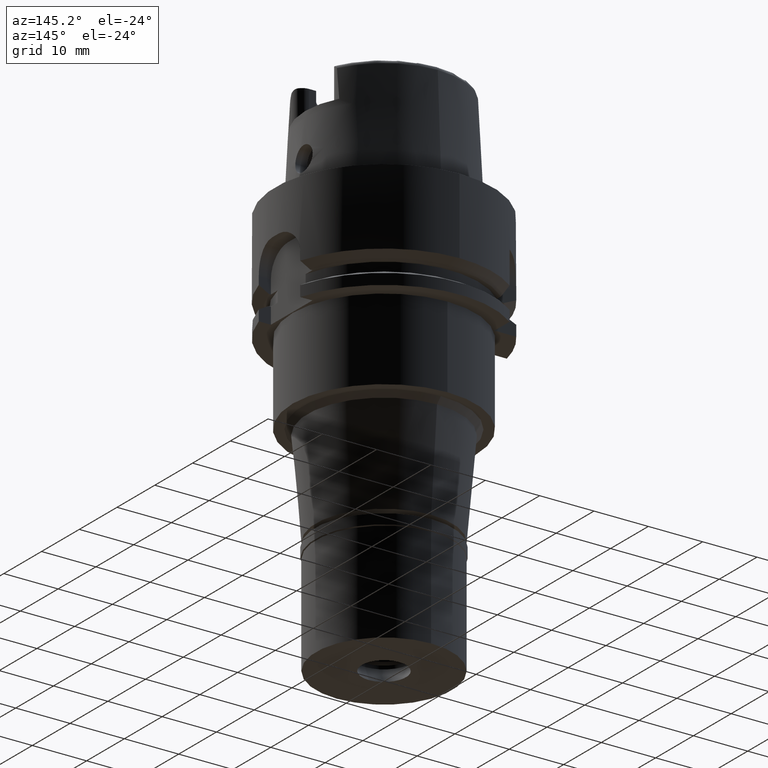
[diagram: clean part render]
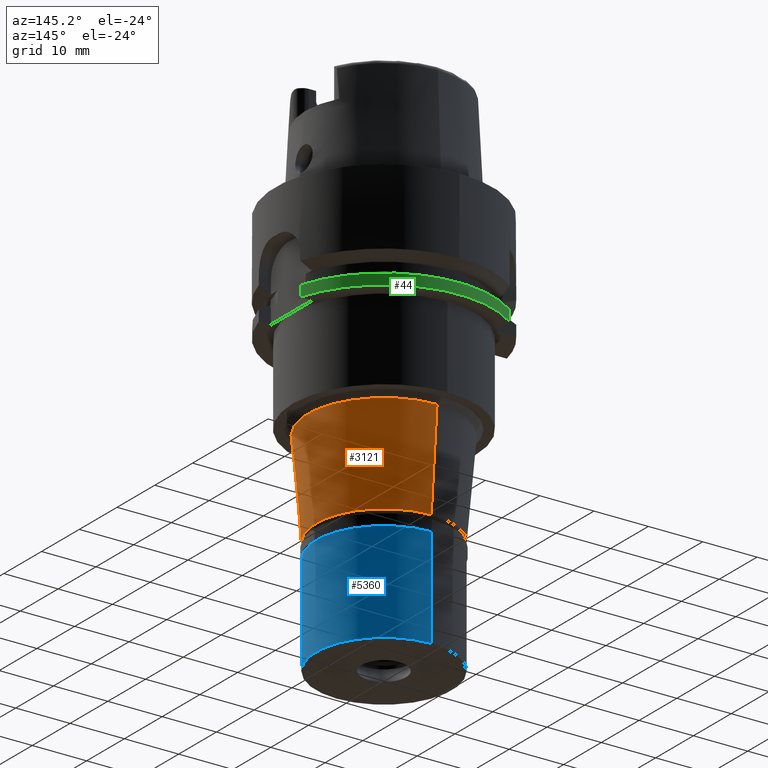
[diagram: same view with three faces highlighted in distinct colors, each labeled with its STEP entity id]
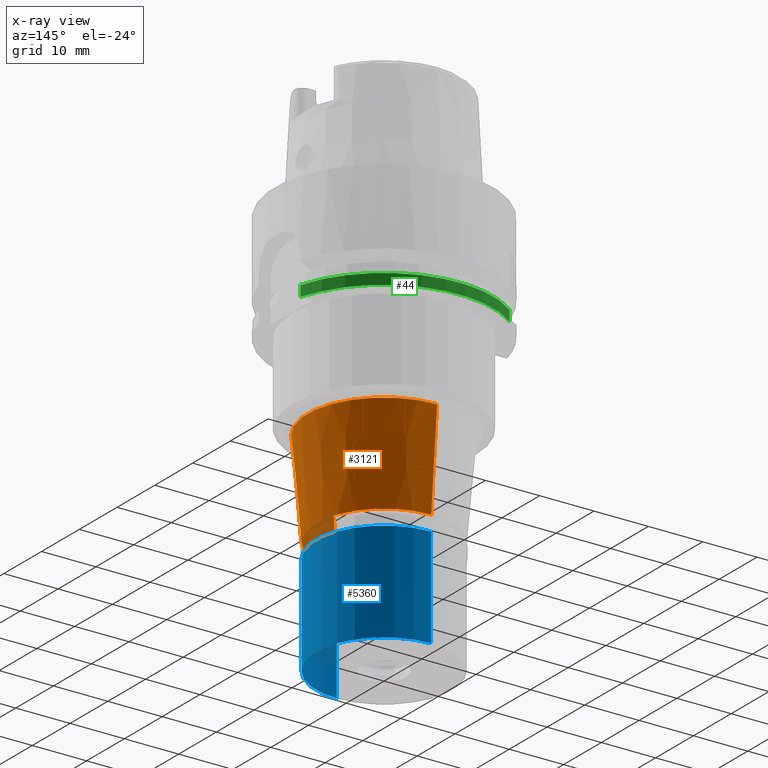
[diagram: x-ray of the same camera — body ghosted, the three highlighted faces saturated]
A machine part, auxiliary view with three faces highlighted in distinct colors.
The next image is the same camera in x-ray (body ghosted, the three faces saturated) — at least one of them is partly hidden behind the body in this view.
Their STEP definitions:

[orange] entity #3121 — the highlighted conical surface has half-angle 5 deg.
#249 = CARTESIAN_POINT ( 'NONE',  ( 0.0000000000000000000, 14.04854934441000047, -36.00000000000000000 ) ) ;
#265 = AXIS2_PLACEMENT_3D ( 'NONE', #5361, #791, #4588 ) ;
#420 = VERTEX_POINT ( 'NONE', #2035 ) ;
#588 = EDGE_CURVE ( 'NONE', #5343, #3355, #4698, .T. ) ;
#791 = DIRECTION ( 'NONE',  ( 0.0000000000000000000, 0.0000000000000000000, 1.000000000000000000 ) ) ;
#807 = DIRECTION ( 'NONE',  ( 0.0000000000000000000, 0.0000000000000000000, 1.000000000000000000 ) ) ;
#819 = EDGE_CURVE ( 'NONE', #420, #3505, #1577, .T. ) ;
#839 = DIRECTION ( 'NONE',  ( 0.0000000000000000000, 0.08715574274773338348, -0.9961946980917388839 ) ) ;
#1468 = EDGE_CURVE ( 'NONE', #3355, #3505, #4322, .T. ) ;
#1502 = ORIENTED_EDGE ( 'NONE', *, *, #819, .F. ) ;
#1539 = VECTOR ( 'NONE', #839, 1000.000000000000114 ) ;
#1577 = LINE ( 'NONE', #249, #2337 ) ;
#1647 = FACE_OUTER_BOUND ( 'NONE', #3688, .T. ) ;
#1724 = DIRECTION ( 'NONE',  ( 0.0000000000000000000, -1.000000000000000000, 0.0000000000000000000 ) ) ;
#1745 = ORIENTED_EDGE ( 'NONE', *, *, #1468, .T. ) ;
#1824 = ORIENTED_EDGE ( 'NONE', *, *, #2116, .F. ) ;
#1959 = CONICAL_SURFACE ( 'NONE', #265, 13.27427467220000068, 0.08726646259969973729 ) ;
#2035 = CARTESIAN_POINT ( 'NONE',  ( 0.0000000000000000000, 14.04854934441000047, -36.00000000000000000 ) ) ;
#2116 = EDGE_CURVE ( 'NONE', #5343, #420, #5282, .T. ) ;
#2139 = CARTESIAN_POINT ( 'NONE',  ( 0.0000000000000000000, 0.0000000000000000000, -36.00000000000000000 ) ) ;
#2337 = VECTOR ( 'NONE', #5375, 1000.000000000000114 ) ;
#2499 = CARTESIAN_POINT ( 'NONE',  ( 0.0000000000000000000, -12.50000000000000000, -53.69999999999999574 ) ) ;
#2552 = AXIS2_PLACEMENT_3D ( 'NONE', #2139, #807, #1724 ) ;
#2689 = DIRECTION ( 'NONE',  ( 0.0000000000000000000, -1.000000000000000000, 0.0000000000000000000 ) ) ;
#2819 = CARTESIAN_POINT ( 'NONE',  ( 0.0000000000000000000, -14.04854934441000047, -36.00000000000000000 ) ) ;
#2912 = ORIENTED_EDGE ( 'NONE', *, *, #588, .T. ) ;
#3070 = CARTESIAN_POINT ( 'NONE',  ( 0.0000000000000000000, 0.0000000000000000000, -53.69999999999999574 ) ) ;
#3121 = ADVANCED_FACE ( 'NONE', ( #1647 ), #1959, .T. ) ;
#3355 = VERTEX_POINT ( 'NONE', #2499 ) ;
#3505 = VERTEX_POINT ( 'NONE', #3938 ) ;
#3688 = EDGE_LOOP ( 'NONE', ( #1824, #2912, #1745, #1502 ) ) ;
#3938 = CARTESIAN_POINT ( 'NONE',  ( 0.0000000000000000000, 12.50000000000000000, -53.69999999999999574 ) ) ;
#4041 = DIRECTION ( 'NONE',  ( 0.0000000000000000000, 0.0000000000000000000, 1.000000000000000000 ) ) ;
#4179 = CARTESIAN_POINT ( 'NONE',  ( 0.0000000000000000000, -14.04854934441000047, -36.00000000000000000 ) ) ;
#4322 = CIRCLE ( 'NONE', #4670, 12.50000000000000000 ) ;
#4588 = DIRECTION ( 'NONE',  ( 0.0000000000000000000, 1.000000000000000000, 0.0000000000000000000 ) ) ;
#4670 = AXIS2_PLACEMENT_3D ( 'NONE', #3070, #4041, #2689 ) ;
#4698 = LINE ( 'NONE', #4179, #1539 ) ;
#5282 = CIRCLE ( 'NONE', #2552, 14.04854934439999958 ) ;
#5343 = VERTEX_POINT ( 'NONE', #2819 ) ;
#5361 = CARTESIAN_POINT ( 'NONE',  ( 0.0000000000000000000, 0.0000000000000000000, -44.85000000000000142 ) ) ;
#5375 = DIRECTION ( 'NONE',  ( 0.0000000000000000000, -0.08715574274773338348, -0.9961946980917388839 ) ) ;

[blue] entity #5360 — the highlighted cylindrical surface (partial cylindrical patch) has radius 12.5 mm, axis along (0, 0, -1).
#133 = LINE ( 'NONE', #489, #2041 ) ;
#195 = AXIS2_PLACEMENT_3D ( 'NONE', #1736, #3857, #1674 ) ;
#345 = VERTEX_POINT ( 'NONE', #2992 ) ;
#398 = DIRECTION ( 'NONE',  ( 0.0000000000000000000, -1.000000000000000000, 0.0000000000000000000 ) ) ;
#484 = FACE_OUTER_BOUND ( 'NONE', #5127, .T. ) ;
#487 = ORIENTED_EDGE ( 'NONE', *, *, #1390, .F. ) ;
#489 = CARTESIAN_POINT ( 'NONE',  ( 0.0000000000000000000, 12.50000000000000000, -2.000000000000000000 ) ) ;
#635 = AXIS2_PLACEMENT_3D ( 'NONE', #2558, #5068, #3806 ) ;
#640 = CIRCLE ( 'NONE', #195, 12.50000000000000000 ) ;
#906 = VECTOR ( 'NONE', #3726, 1000.000000000000000 ) ;
#929 = CYLINDRICAL_SURFACE ( 'NONE', #1253, 12.50000000000000000 ) ;
#1075 = CARTESIAN_POINT ( 'NONE',  ( 0.0000000000000000000, -12.50000000000000000, -2.000000000000000000 ) ) ;
#1118 = VERTEX_POINT ( 'NONE', #2294 ) ;
#1253 = AXIS2_PLACEMENT_3D ( 'NONE', #1665, #3014, #398 ) ;
#1279 = ORIENTED_EDGE ( 'NONE', *, *, #4116, .T. ) ;
#1390 = EDGE_CURVE ( 'NONE', #345, #1118, #133, .T. ) ;
#1665 = CARTESIAN_POINT ( 'NONE',  ( 0.0000000000000000000, 0.0000000000000000000, 0.0000000000000000000 ) ) ;
#1674 = DIRECTION ( 'NONE',  ( 0.0000000000000000000, -1.000000000000000000, 0.0000000000000000000 ) ) ;
#1736 = CARTESIAN_POINT ( 'NONE',  ( 0.0000000000000000000, 0.0000000000000000000, -20.50000000000000000 ) ) ;
#2041 = VECTOR ( 'NONE', #3493, 1000.000000000000000 ) ;
#2053 = CARTESIAN_POINT ( 'NONE',  ( 0.0000000000000000000, -12.50000000000000000, -2.000000000000000000 ) ) ;
#2069 = ORIENTED_EDGE ( 'NONE', *, *, #4411, .T. ) ;
#2294 = CARTESIAN_POINT ( 'NONE',  ( 0.0000000000000000000, 12.50000000000000000, -20.50000000000000000 ) ) ;
#2452 = LINE ( 'NONE', #2053, #906 ) ;
#2558 = CARTESIAN_POINT ( 'NONE',  ( 0.0000000000000000000, 0.0000000000000000000, -2.000000000000000000 ) ) ;
#2992 = CARTESIAN_POINT ( 'NONE',  ( 0.0000000000000000000, 12.50000000000000000, -2.000000000000000000 ) ) ;
#3014 = DIRECTION ( 'NONE',  ( 0.0000000000000000000, 0.0000000000000000000, -1.000000000000000000 ) ) ;
#3493 = DIRECTION ( 'NONE',  ( 0.0000000000000000000, 0.0000000000000000000, -1.000000000000000000 ) ) ;
#3726 = DIRECTION ( 'NONE',  ( 0.0000000000000000000, 0.0000000000000000000, -1.000000000000000000 ) ) ;
#3806 = DIRECTION ( 'NONE',  ( 0.0000000000000000000, 1.000000000000000000, 0.0000000000000000000 ) ) ;
#3810 = VERTEX_POINT ( 'NONE', #1075 ) ;
#3857 = DIRECTION ( 'NONE',  ( 0.0000000000000000000, 0.0000000000000000000, 1.000000000000000000 ) ) ;
#4066 = ORIENTED_EDGE ( 'NONE', *, *, #4853, .T. ) ;
#4116 = EDGE_CURVE ( 'NONE', #3810, #4637, #2452, .T. ) ;
#4339 = CIRCLE ( 'NONE', #635, 12.50000000000000000 ) ;
#4411 = EDGE_CURVE ( 'NONE', #345, #3810, #4339, .T. ) ;
#4486 = CARTESIAN_POINT ( 'NONE',  ( 0.0000000000000000000, -12.50000000000000000, -20.50000000000000000 ) ) ;
#4637 = VERTEX_POINT ( 'NONE', #4486 ) ;
#4853 = EDGE_CURVE ( 'NONE', #4637, #1118, #640, .T. ) ;
#5068 = DIRECTION ( 'NONE',  ( 0.0000000000000000000, 0.0000000000000000000, -1.000000000000000000 ) ) ;
#5127 = EDGE_LOOP ( 'NONE', ( #2069, #1279, #4066, #487 ) ) ;
#5360 = ADVANCED_FACE ( 'NONE', ( #484 ), #929, .T. ) ;

[green] entity #44 — the highlighted cylindrical surface (partial cylindrical patch) has radius 20 mm, axis along (0, 0, -1).
#17 = DIRECTION ( 'NONE',  ( 0.0000000000000000000, 0.0000000000000000000, 1.000000000000000000 ) ) ;
#44 = ADVANCED_FACE ( 'NONE', ( #4591 ), #822, .T. ) ;
#349 = CIRCLE ( 'NONE', #1503, 20.00000000000000000 ) ;
#457 = DIRECTION ( 'NONE',  ( 0.0000000000000000000, 0.0000000000000000000, -1.000000000000000000 ) ) ;
#461 = AXIS2_PLACEMENT_3D ( 'NONE', #4651, #17, #1712 ) ;
#648 = AXIS2_PLACEMENT_3D ( 'NONE', #4240, #457, #2153 ) ;
#784 = ORIENTED_EDGE ( 'NONE', *, *, #4162, .T. ) ;
#806 = EDGE_CURVE ( 'NONE', #2728, #1826, #1978, .T. ) ;
#822 = CYLINDRICAL_SURFACE ( 'NONE', #648, 20.00000000000000000 ) ;
#857 = VERTEX_POINT ( 'NONE', #5298 ) ;
#916 = DIRECTION ( 'NONE',  ( 0.0000000000000000000, 0.0000000000000000000, -1.000000000000000000 ) ) ;
#945 = ORIENTED_EDGE ( 'NONE', *, *, #2481, .T. ) ;
#1057 = CARTESIAN_POINT ( 'NONE',  ( -11.99999819327999973, 16.00000135504000198, -18.02071908005000367 ) ) ;
#1063 = CARTESIAN_POINT ( 'NONE',  ( -11.99999819327999973, 16.00000135504000198, -18.02071908005000367 ) ) ;
#1074 = CARTESIAN_POINT ( 'NONE',  ( 19.22888452303000051, 5.500000000000000000, -20.00000000000000000 ) ) ;
#1503 = AXIS2_PLACEMENT_3D ( 'NONE', #4654, #916, #4281 ) ;
#1504 = EDGE_CURVE ( 'NONE', #1946, #857, #4815, .T. ) ;
#1624 = VECTOR ( 'NONE', #3703, 1000.000000000000114 ) ;
#1712 = DIRECTION ( 'NONE',  ( 0.0000000000000000000, 1.000000000000000000, 0.0000000000000000000 ) ) ;
#1740 = ORIENTED_EDGE ( 'NONE', *, *, #1504, .F. ) ;
#1826 = VERTEX_POINT ( 'NONE', #4072 ) ;
#1946 = VERTEX_POINT ( 'NONE', #1057 ) ;
#1976 = ORIENTED_EDGE ( 'NONE', *, *, #806, .F. ) ;
#1978 = LINE ( 'NONE', #4119, #1624 ) ;
#2153 = DIRECTION ( 'NONE',  ( 0.0000000000000000000, -1.000000000000000000, 0.0000000000000000000 ) ) ;
#2481 = EDGE_CURVE ( 'NONE', #1946, #1826, #349, .T. ) ;
#2728 = VERTEX_POINT ( 'NONE', #1074 ) ;
#3703 = DIRECTION ( 'NONE',  ( 1.480930839012995801E-08, -5.177686883139983450E-08, 0.9999999999999985567 ) ) ;
#4070 = EDGE_LOOP ( 'NONE', ( #945, #1976, #784, #1740 ) ) ;
#4072 = CARTESIAN_POINT ( 'NONE',  ( 19.22888455233999849, 5.499999897519000314, -18.02072508341000301 ) ) ;
#4119 = CARTESIAN_POINT ( 'NONE',  ( 19.22888452303000051, 5.500000000000000000, -20.00000000000000000 ) ) ;
#4162 = EDGE_CURVE ( 'NONE', #2728, #857, #4595, .T. ) ;
#4235 = VECTOR ( 'NONE', #4430, 1000.000000000000000 ) ;
#4240 = CARTESIAN_POINT ( 'NONE',  ( 0.0000000000000000000, 1.523950476858999865E-14, 24.44000000000000128 ) ) ;
#4281 = DIRECTION ( 'NONE',  ( -0.5999999999999999778, 0.8000000000000000444, 0.0000000000000000000 ) ) ;
#4430 = DIRECTION ( 'NONE',  ( -9.128186884751450336E-07, -6.846133730905339457E-07, -0.9999999999993490762 ) ) ;
#4591 = FACE_OUTER_BOUND ( 'NONE', #4070, .T. ) ;
#4595 = CIRCLE ( 'NONE', #461, 20.00000000000000000 ) ;
#4651 = CARTESIAN_POINT ( 'NONE',  ( 0.0000000000000000000, 1.523950476858999865E-14, -20.00000000000000000 ) ) ;
#4654 = CARTESIAN_POINT ( 'NONE',  ( 0.0000000000000000000, 1.010206699502999904E-14, -18.02072594216000212 ) ) ;
#4815 = LINE ( 'NONE', #1063, #4235 ) ;
#5298 = CARTESIAN_POINT ( 'NONE',  ( -12.00000000000000000, 16.00000000000000000, -20.00000000000000000 ) ) ;